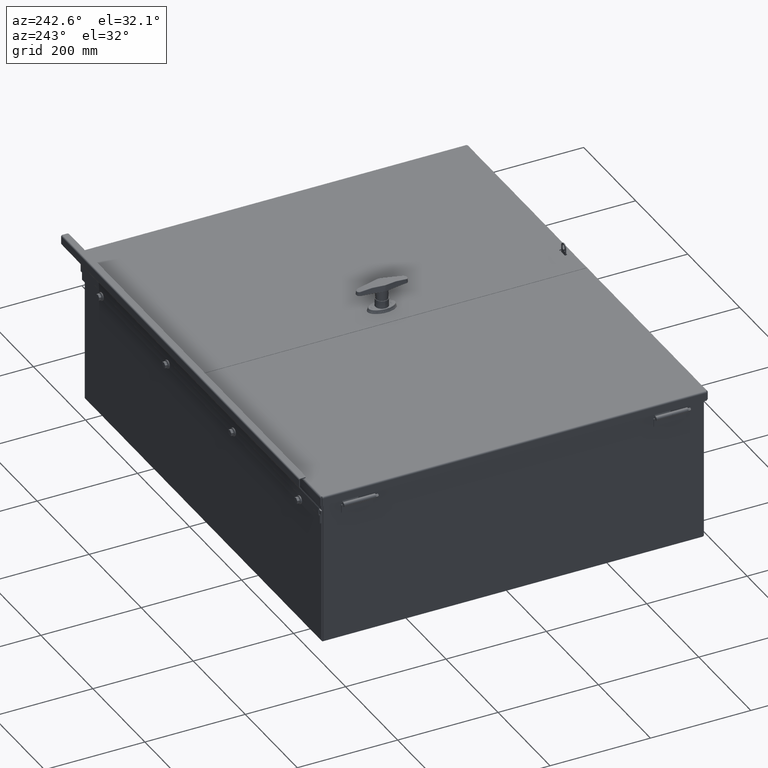
[diagram: clean part render]
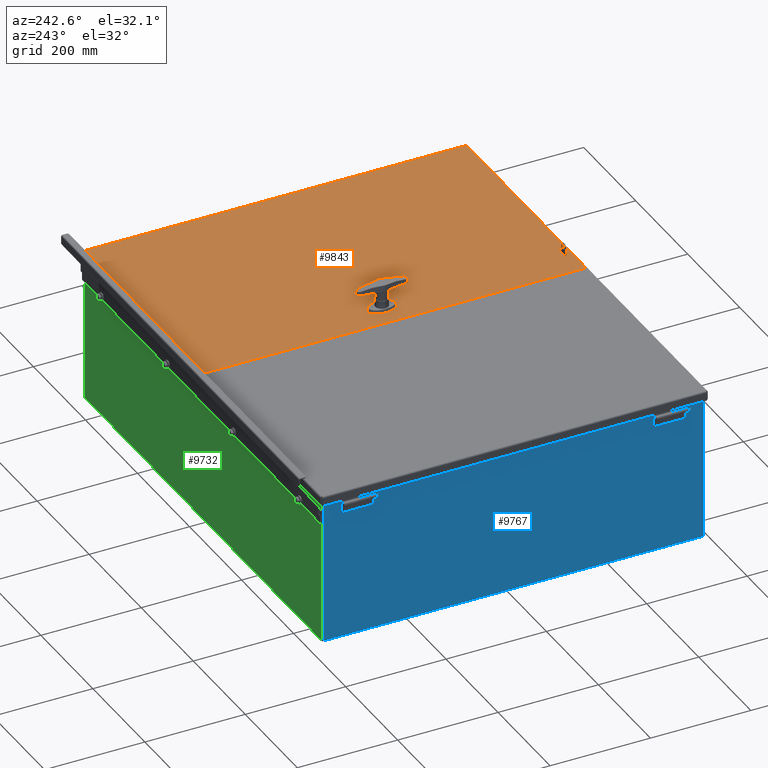
[diagram: same view with three faces highlighted in distinct colors, each labeled with its STEP entity id]
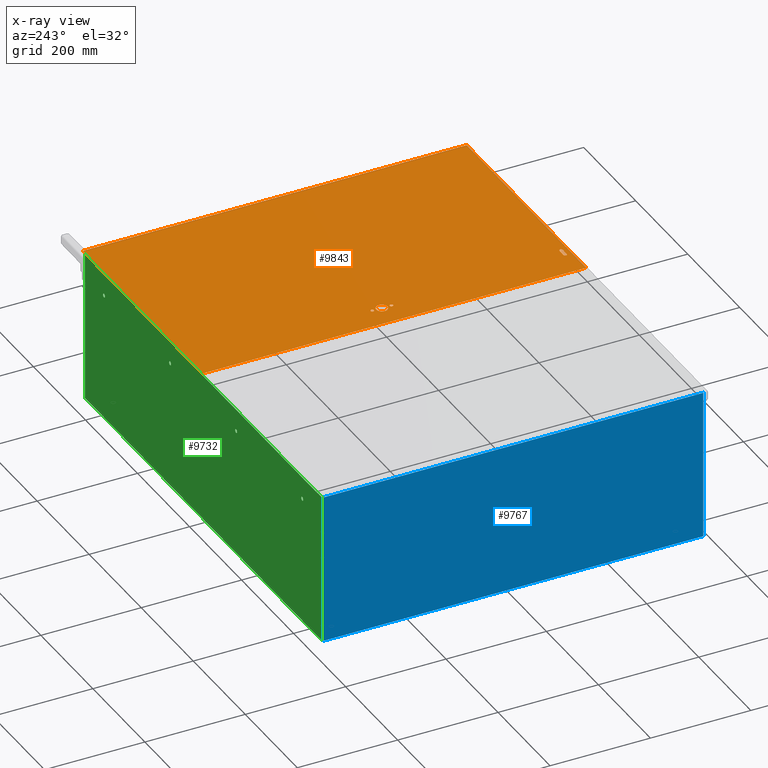
[diagram: x-ray of the same camera — body ghosted, the three highlighted faces saturated]
A machine part, auxiliary view with three faces highlighted in distinct colors.
The next image is the same camera in x-ray (body ghosted, the three faces saturated) — at least one of them is partly hidden behind the body in this view.
Their STEP definitions:

[orange] entity #9843 — the highlighted planar face has unit normal (0, -0, 1).
#686=PLANE($,#10599);
#1147=LINE($,#14916,#1895);
#1151=LINE($,#14927,#1899);
#1154=LINE($,#14957,#1902);
#1170=LINE($,#15023,#1918);
#1186=LINE($,#15099,#1934);
#1200=LINE($,#15188,#1948);
#1895=VECTOR($,#12026,0.624999999999999);
#1899=VECTOR($,#12038,0.625);
#1902=VECTOR($,#12061,18.0938);
#1918=VECTOR($,#12099,18.0938);
#1934=VECTOR($,#12133,30.1251);
#1948=VECTOR($,#12163,30.1251);
#2498=FACE_BOUND($,#3424,.T.);
#2499=FACE_BOUND($,#3425,.T.);
#2500=FACE_BOUND($,#3426,.T.);
#2501=FACE_BOUND($,#3427,.T.);
#2502=FACE_BOUND($,#3428,.T.);
#3424=EDGE_LOOP($,(#7297,#7298,#7299,#7300));
#3425=EDGE_LOOP($,(#7301));
#3426=EDGE_LOOP($,(#7302));
#3427=EDGE_LOOP($,(#7303));
#3428=EDGE_LOOP($,(#7304,#7305,#7306,#7307));
#4076=CIRCLE($,#10554,0.125);
#4078=CIRCLE($,#10558,0.125);
#4081=CIRCLE($,#10563,0.125);
#4083=CIRCLE($,#10566,0.125);
#4085=CIRCLE($,#10569,0.4375);
#4599=VERTEX_POINT($,#14906);
#4600=VERTEX_POINT($,#14907);
#4603=VERTEX_POINT($,#14915);
#4605=VERTEX_POINT($,#14921);
#4608=VERTEX_POINT($,#14932);
#4610=VERTEX_POINT($,#14937);
#4612=VERTEX_POINT($,#14942);
#4615=VERTEX_POINT($,#14948);
#4616=VERTEX_POINT($,#14956);
#4627=VERTEX_POINT($,#15020);
#4628=VERTEX_POINT($,#15022);
#5559=EDGE_CURVE($,#4599,#4600,#4076,.T.);
#5563=EDGE_CURVE($,#4603,#4599,#1147,.T.);
#5566=EDGE_CURVE($,#4605,#4603,#4078,.T.);
#5569=EDGE_CURVE($,#4600,#4605,#1151,.T.);
#5572=EDGE_CURVE($,#4608,#4608,#4081,.T.);
#5574=EDGE_CURVE($,#4610,#4610,#4083,.T.);
#5576=EDGE_CURVE($,#4612,#4612,#4085,.T.);
#5579=EDGE_CURVE($,#4616,#4615,#1154,.T.);
#5599=EDGE_CURVE($,#4628,#4627,#1170,.T.);
#5619=EDGE_CURVE($,#4615,#4628,#1186,.T.);
#5636=EDGE_CURVE($,#4616,#4627,#1200,.T.);
#7297=ORIENTED_EDGE($,*,*,#5559,.T.);
#7298=ORIENTED_EDGE($,*,*,#5569,.T.);
#7299=ORIENTED_EDGE($,*,*,#5566,.T.);
#7300=ORIENTED_EDGE($,*,*,#5563,.T.);
#7301=ORIENTED_EDGE($,*,*,#5572,.T.);
#7302=ORIENTED_EDGE($,*,*,#5574,.T.);
#7303=ORIENTED_EDGE($,*,*,#5576,.T.);
#7304=ORIENTED_EDGE($,*,*,#5579,.T.);
#7305=ORIENTED_EDGE($,*,*,#5619,.T.);
#7306=ORIENTED_EDGE($,*,*,#5599,.T.);
#7307=ORIENTED_EDGE($,*,*,#5636,.F.);
#9843=ADVANCED_FACE($,(#2498,#2499,#2500,#2501,#2502),#686,.T.);
#10554=AXIS2_PLACEMENT_3D($,#14908,#12018,#12019);
#10558=AXIS2_PLACEMENT_3D($,#14922,#12031,#12032);
#10563=AXIS2_PLACEMENT_3D($,#14933,#12044,#12045);
#10566=AXIS2_PLACEMENT_3D($,#14938,#12050,#12051);
#10569=AXIS2_PLACEMENT_3D($,#14943,#12056,#12057);
#10599=AXIS2_PLACEMENT_3D($,#15189,#12164,#12165);
#12018=DIRECTION('center_axis',(0.,0.,-1.));
#12019=DIRECTION('ref_axis',(0.,-1.,0.));
#12026=DIRECTION($,(1.,0.,0.));
#12031=DIRECTION('center_axis',(0.,0.,-1.));
#12032=DIRECTION('ref_axis',(0.,1.,0.));
#12038=DIRECTION($,(-1.,-4.47585975281953E-015,0.));
#12044=DIRECTION('center_axis',(0.,0.,-1.));
#12045=DIRECTION('ref_axis',(-1.,0.,0.));
#12050=DIRECTION('center_axis',(0.,0.,-1.));
#12051=DIRECTION('ref_axis',(-1.,0.,0.));
#12056=DIRECTION('center_axis',(0.,0.,-1.));
#12057=DIRECTION('ref_axis',(-1.,0.,0.));
#12061=DIRECTION($,(1.,0.,0.));
#12099=DIRECTION($,(-1.,-3.09212254530525E-016,0.));
#12133=DIRECTION($,(0.,1.,0.));
#12163=DIRECTION($,(9.20958796876446E-017,1.,0.));
#12164=DIRECTION('center_axis',(0.,0.,1.));
#12165=DIRECTION('ref_axis',(1.,0.,0.));
#14906=CARTESIAN_POINT('',(-6.265625,-14.4375,0.0937));
#14907=CARTESIAN_POINT('',(-6.265625,-14.6875,0.0937));
#14908=CARTESIAN_POINT('Origin',(-6.265625,-14.5625,0.0937));
#14915=CARTESIAN_POINT('',(-6.890625,-14.4375,0.0937));
#14916=CARTESIAN_POINT($,(-3.4453125,-14.4375,0.0937));
#14921=CARTESIAN_POINT('',(-6.890625,-14.6875,0.0937));
#14922=CARTESIAN_POINT('Origin',(-6.890625,-14.5625,0.0937));
#14927=CARTESIAN_POINT($,(-3.13281249999997,-14.6875,0.0937));
#14932=CARTESIAN_POINT('',(-7.109375,-0.750000000000007,0.0937));
#14933=CARTESIAN_POINT('Origin',(-7.234375,-0.750000000000007,0.0937));
#14937=CARTESIAN_POINT('',(-7.109375,0.749999999999993,0.0937));
#14938=CARTESIAN_POINT('Origin',(-7.234375,0.749999999999993,0.0937));
#14942=CARTESIAN_POINT('',(-6.796875,-7.40899710525717E-015,0.0937));
#14943=CARTESIAN_POINT('Origin',(-7.234375,-7.46257540271986E-015,0.0937));
#14948=CARTESIAN_POINT('',(8.984425,-15.06255,0.0937));
#14956=CARTESIAN_POINT('',(-9.109375,-15.06255,0.0937));
#14957=CARTESIAN_POINT($,(-4.5546875,-15.06255,0.0937));
#15020=CARTESIAN_POINT('',(-9.109375,15.06255,0.0937));
#15022=CARTESIAN_POINT('',(8.984425,15.06255,0.0937));
#15023=CARTESIAN_POINT($,(4.4922125,15.06255,0.0937));
#15099=CARTESIAN_POINT($,(8.984425,-7.531275,0.0937));
#15188=CARTESIAN_POINT($,(-9.109375,-15.1875,0.0937));
#15189=CARTESIAN_POINT('Origin',(6.99353086378051E-016,-1.14449817424365E-015,
0.0937));

[blue] entity #9767 — the highlighted planar face has unit normal (-1, -0, 0).
#638=PLANE($,#10486);
#1068=LINE($,#14684,#1816);
#1083=LINE($,#14720,#1831);
#1086=LINE($,#14726,#1834);
#1087=LINE($,#14727,#1835);
#1816=VECTOR($,#11781,29.8126);
#1831=VECTOR($,#11820,11.78135);
#1834=VECTOR($,#11825,11.78135);
#1835=VECTOR($,#11826,29.8126);
#2725=FACE_OUTER_BOUND($,#3335,.T.);
#3335=EDGE_LOOP($,(#6982,#6983,#6984,#6985));
#4532=VERTEX_POINT($,#14681);
#4533=VERTEX_POINT($,#14683);
#4542=VERTEX_POINT($,#14719);
#4544=VERTEX_POINT($,#14725);
#5456=EDGE_CURVE($,#4533,#4532,#1068,.T.);
#5474=EDGE_CURVE($,#4533,#4542,#1083,.T.);
#5477=EDGE_CURVE($,#4544,#4532,#1086,.T.);
#5478=EDGE_CURVE($,#4542,#4544,#1087,.T.);
#6982=ORIENTED_EDGE($,*,*,#5456,.T.);
#6983=ORIENTED_EDGE($,*,*,#5477,.F.);
#6984=ORIENTED_EDGE($,*,*,#5478,.F.);
#6985=ORIENTED_EDGE($,*,*,#5474,.F.);
#9767=ADVANCED_FACE($,(#2725),#638,.T.);
#10486=AXIS2_PLACEMENT_3D($,#14724,#11823,#11824);
#11781=DIRECTION($,(-3.28416280676382E-016,1.,0.));
#11820=DIRECTION($,(-1.,0.,0.));
#11823=DIRECTION('center_axis',(0.,0.,1.));
#11824=DIRECTION('ref_axis',(1.,0.,0.));
#11825=DIRECTION($,(1.,4.69904562376591E-016,0.));
#11826=DIRECTION($,(-1.64208140338191E-016,1.,0.));
#14681=CARTESIAN_POINT('',(5.8282,14.9063,0.0937));
#14683=CARTESIAN_POINT('',(5.82820000000001,-14.9063,0.0937));
#14684=CARTESIAN_POINT($,(5.8282,-7.45315,0.0937));
#14719=CARTESIAN_POINT('',(-5.95315,-14.9063,0.0937));
#14720=CARTESIAN_POINT($,(5.95315000000001,-14.9063,0.0937));
#14724=CARTESIAN_POINT('Origin',(1.04902962956708E-015,-5.32786987656787E-015,
0.0937));
#14725=CARTESIAN_POINT('',(-5.95315,14.9063,0.0937));
#14726=CARTESIAN_POINT($,(-5.95315,14.9063,0.0937));
#14727=CARTESIAN_POINT($,(-5.95315,-14.9063,0.0937));

[green] entity #9732 — the highlighted planar face has unit normal (-0, -1, -0).
#609=PLANE($,#10438);
#976=LINE($,#14474,#1724);
#1019=LINE($,#14566,#1767);
#1022=LINE($,#14573,#1770);
#1026=LINE($,#14580,#1774);
#1028=LINE($,#14584,#1776);
#1029=LINE($,#14586,#1777);
#1030=LINE($,#14588,#1778);
#1031=LINE($,#14590,#1779);
#1032=LINE($,#14592,#1780);
#1033=LINE($,#14594,#1781);
#1034=LINE($,#14596,#1782);
#1035=LINE($,#14597,#1783);
#1724=VECTOR($,#11573,34.6875);
#1767=VECTOR($,#11656,0.000199999999999981);
#1770=VECTOR($,#11661,0.0314499999999995);
#1774=VECTOR($,#11667,0.00020000000000138);
#1776=VECTOR($,#11671,0.000199999999999981);
#1777=VECTOR($,#11672,0.00020000000000138);
#1778=VECTOR($,#11673,0.0314499999999995);
#1779=VECTOR($,#11674,0.562349999999999);
#1780=VECTOR($,#11675,11.78135);
#1781=VECTOR($,#11676,35.8126);
#1782=VECTOR($,#11677,11.78135);
#1783=VECTOR($,#11678,0.562349999999996);
#2464=FACE_BOUND($,#3284,.T.);
#2465=FACE_BOUND($,#3285,.T.);
#2466=FACE_BOUND($,#3286,.T.);
#2467=FACE_BOUND($,#3287,.T.);
#2468=FACE_BOUND($,#3288,.T.);
#3284=EDGE_LOOP($,(#6810));
#3285=EDGE_LOOP($,(#6811));
#3286=EDGE_LOOP($,(#6812));
#3287=EDGE_LOOP($,(#6813));
#3288=EDGE_LOOP($,(#6814,#6815,#6816,#6817,#6818,#6819,#6820,#6821,#6822,
#6823,#6824,#6825));
#4012=CIRCLE($,#10368,0.140625);
#4014=CIRCLE($,#10371,0.140625);
#4016=CIRCLE($,#10374,0.140625);
#4018=CIRCLE($,#10377,0.140625);
#4433=VERTEX_POINT($,#14360);
#4435=VERTEX_POINT($,#14365);
#4437=VERTEX_POINT($,#14370);
#4439=VERTEX_POINT($,#14375);
#4472=VERTEX_POINT($,#14471);
#4473=VERTEX_POINT($,#14473);
#4502=VERTEX_POINT($,#14565);
#4504=VERTEX_POINT($,#14571);
#4505=VERTEX_POINT($,#14572);
#4508=VERTEX_POINT($,#14583);
#4509=VERTEX_POINT($,#14585);
#4510=VERTEX_POINT($,#14587);
#4511=VERTEX_POINT($,#14589);
#4512=VERTEX_POINT($,#14591);
#4513=VERTEX_POINT($,#14593);
#4514=VERTEX_POINT($,#14595);
#5301=EDGE_CURVE($,#4433,#4433,#4012,.T.);
#5303=EDGE_CURVE($,#4435,#4435,#4014,.T.);
#5305=EDGE_CURVE($,#4437,#4437,#4016,.T.);
#5307=EDGE_CURVE($,#4439,#4439,#4018,.T.);
#5352=EDGE_CURVE($,#4473,#4472,#976,.T.);
#5398=EDGE_CURVE($,#4502,#4473,#1019,.T.);
#5401=EDGE_CURVE($,#4504,#4505,#1022,.T.);
#5405=EDGE_CURVE($,#4505,#4502,#1026,.T.);
#5407=EDGE_CURVE($,#4472,#4508,#1028,.T.);
#5408=EDGE_CURVE($,#4508,#4509,#1029,.T.);
#5409=EDGE_CURVE($,#4509,#4510,#1030,.T.);
#5410=EDGE_CURVE($,#4511,#4510,#1031,.T.);
#5411=EDGE_CURVE($,#4512,#4511,#1032,.T.);
#5412=EDGE_CURVE($,#4512,#4513,#1033,.T.);
#5413=EDGE_CURVE($,#4514,#4513,#1034,.T.);
#5414=EDGE_CURVE($,#4504,#4514,#1035,.T.);
#6810=ORIENTED_EDGE($,*,*,#5301,.T.);
#6811=ORIENTED_EDGE($,*,*,#5303,.T.);
#6812=ORIENTED_EDGE($,*,*,#5305,.T.);
#6813=ORIENTED_EDGE($,*,*,#5307,.T.);
#6814=ORIENTED_EDGE($,*,*,#5401,.T.);
#6815=ORIENTED_EDGE($,*,*,#5405,.T.);
#6816=ORIENTED_EDGE($,*,*,#5398,.T.);
#6817=ORIENTED_EDGE($,*,*,#5352,.T.);
#6818=ORIENTED_EDGE($,*,*,#5407,.T.);
#6819=ORIENTED_EDGE($,*,*,#5408,.T.);
#6820=ORIENTED_EDGE($,*,*,#5409,.T.);
#6821=ORIENTED_EDGE($,*,*,#5410,.F.);
#6822=ORIENTED_EDGE($,*,*,#5411,.F.);
#6823=ORIENTED_EDGE($,*,*,#5412,.T.);
#6824=ORIENTED_EDGE($,*,*,#5413,.F.);
#6825=ORIENTED_EDGE($,*,*,#5414,.F.);
#9732=ADVANCED_FACE($,(#2464,#2465,#2466,#2467,#2468),#609,.F.);
#10368=AXIS2_PLACEMENT_3D($,#14361,#11452,#11453);
#10371=AXIS2_PLACEMENT_3D($,#14366,#11458,#11459);
#10374=AXIS2_PLACEMENT_3D($,#14371,#11464,#11465);
#10377=AXIS2_PLACEMENT_3D($,#14376,#11470,#11471);
#10438=AXIS2_PLACEMENT_3D($,#14582,#11669,#11670);
#11452=DIRECTION('center_axis',(-1.60387280597897E-018,-1.,5.27644866426841E-015));
#11453=DIRECTION('ref_axis',(-1.,0.,4.03693936291067E-031));
#11458=DIRECTION('center_axis',(-1.60387280597897E-018,-1.,5.27644866426841E-015));
#11459=DIRECTION('ref_axis',(-1.,0.,4.03693936291067E-031));
#11464=DIRECTION('center_axis',(-1.60387280597897E-018,-1.,5.27644866426841E-015));
#11465=DIRECTION('ref_axis',(-1.,0.,4.03693936291067E-031));
#11470=DIRECTION('center_axis',(-1.60387280597897E-018,-1.,5.27644866426841E-015));
#11471=DIRECTION('ref_axis',(-1.,0.,4.03693936291067E-031));
#11573=DIRECTION($,(1.,-1.60387280597897E-018,0.));
#11656=DIRECTION($,(0.,5.27644866426841E-015,1.));
#11661=DIRECTION($,(0.,-5.27644866426841E-015,-1.));
#11667=DIRECTION($,(1.,-1.60387280597897E-018,0.));
#11669=DIRECTION('center_axis',(-1.60387280597897E-018,-1.,5.27644866426841E-015));
#11670=DIRECTION('ref_axis',(1.,0.,0.));
#11671=DIRECTION($,(0.,-5.27644866426841E-015,-1.));
#11672=DIRECTION($,(1.,-1.60387280597897E-018,0.));
#11673=DIRECTION($,(0.,5.27644866426841E-015,1.));
#11674=DIRECTION($,(-1.,0.,0.));
#11675=DIRECTION($,(0.,5.39030285815812E-015,1.));
#11676=DIRECTION($,(-1.,1.60387280597897E-018,-8.64536017019053E-033));
#11677=DIRECTION($,(0.,-5.32907051820075E-015,-1.));
#11678=DIRECTION($,(-1.,0.,0.));
#14360=CARTESIAN_POINT('',(15.140625,15.0000000000001,10.125));
#14361=CARTESIAN_POINT('Origin',(15.,15.,10.125));
#14365=CARTESIAN_POINT('',(5.140625,15.0000000000001,10.125));
#14366=CARTESIAN_POINT('Origin',(5.,15.,10.125));
#14370=CARTESIAN_POINT('',(-4.859375,15.0000000000001,10.125));
#14371=CARTESIAN_POINT('Origin',(-5.,15.,10.125));
#14375=CARTESIAN_POINT('',(-14.859375,15.0000000000001,10.125));
#14376=CARTESIAN_POINT('Origin',(-15.,15.,10.125));
#14471=CARTESIAN_POINT('',(17.34375,15.0000000000001,11.87505));
#14473=CARTESIAN_POINT('',(-17.34375,15.0000000000001,11.87505));
#14474=CARTESIAN_POINT($,(-8.671875,15.0000000000001,11.87505));
#14565=CARTESIAN_POINT('',(-17.34375,15.0000000000001,11.87485));
#14566=CARTESIAN_POINT($,(-17.34375,15.0000000000001,8.92549608519401));
#14571=CARTESIAN_POINT('',(-17.34395,15.0000000000001,11.9063));
#14572=CARTESIAN_POINT('',(-17.34395,15.0000000000001,11.87485));
#14573=CARTESIAN_POINT($,(-17.34395,15.0000000000001,8.94122108519401));
#14580=CARTESIAN_POINT($,(-8.671975,15.0000000000001,11.87485));
#14582=CARTESIAN_POINT('Origin',(6.99353086378051E-016,15.,5.97614217038803));
#14583=CARTESIAN_POINT('',(17.34375,15.0000000000001,11.87485));
#14584=CARTESIAN_POINT($,(17.34375,15.0000000000001,8.94122108519401));
#14585=CARTESIAN_POINT('',(17.34395,15.0000000000001,11.87485));
#14586=CARTESIAN_POINT($,(8.671875,15.0000000000001,11.87485));
#14587=CARTESIAN_POINT('',(17.34395,15.0000000000001,11.9063));
#14588=CARTESIAN_POINT($,(17.34395,15.0000000000001,8.92549608519401));
#14589=CARTESIAN_POINT('',(17.9063,15.0000000000001,11.9063));
#14590=CARTESIAN_POINT($,(17.9063,15.0000000000001,11.9063));
#14591=CARTESIAN_POINT('',(17.9063,15.,0.124949999999999));
#14592=CARTESIAN_POINT($,(17.9063,15.,0.124949999999999));
#14593=CARTESIAN_POINT('',(-17.9063,15.,0.124949999999999));
#14594=CARTESIAN_POINT($,(3.49736430917471E-016,15.,0.124949999999999));
#14595=CARTESIAN_POINT('',(-17.9063,15.0000000000001,11.9063));
#14596=CARTESIAN_POINT($,(-17.9063,15.,-0.0329813184478807));
#14597=CARTESIAN_POINT($,(17.9063,15.0000000000001,11.9063));